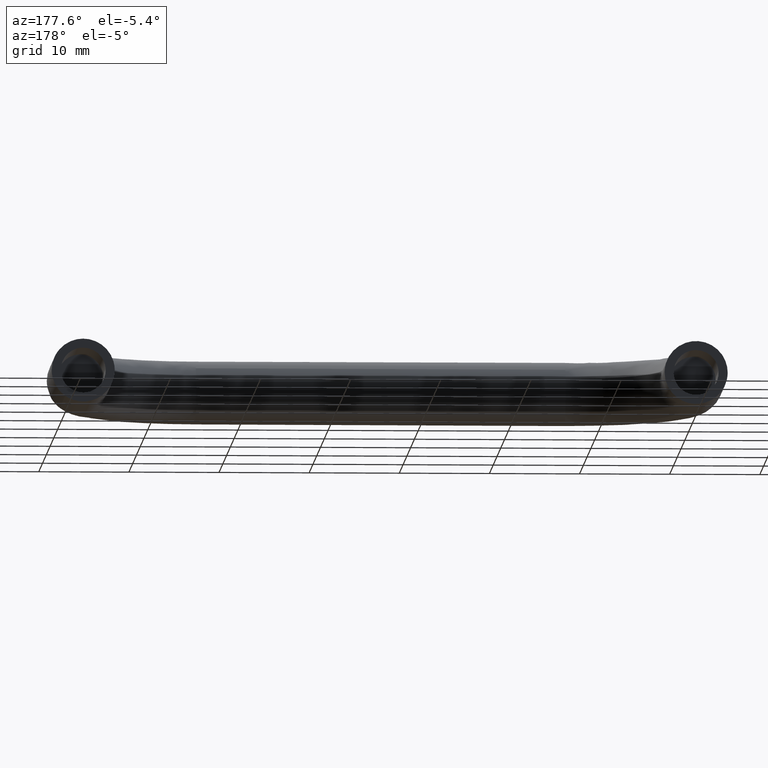
[diagram: clean part render]
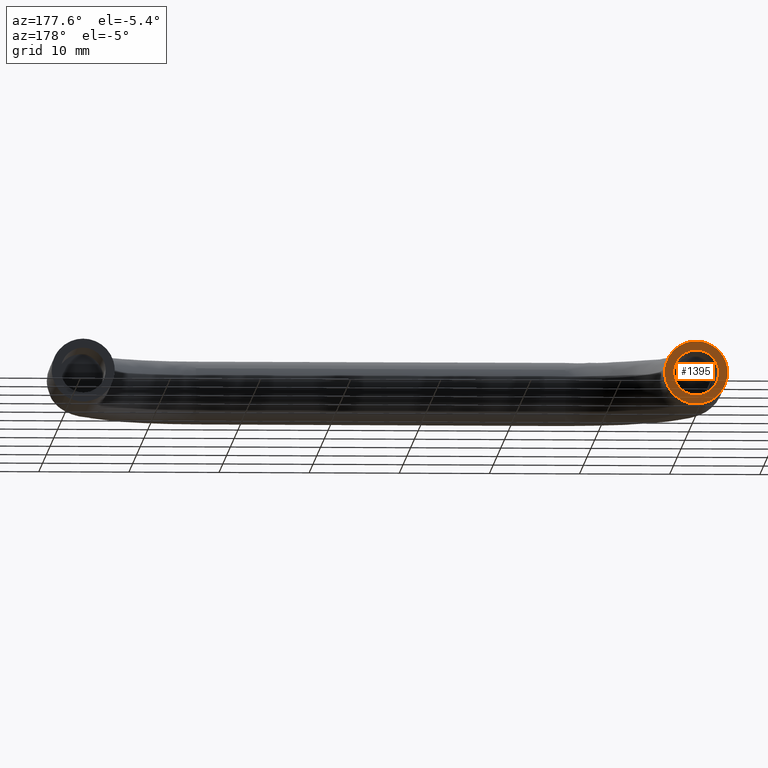
[diagram: same view with one face highlighted and labeled with its STEP entity id]
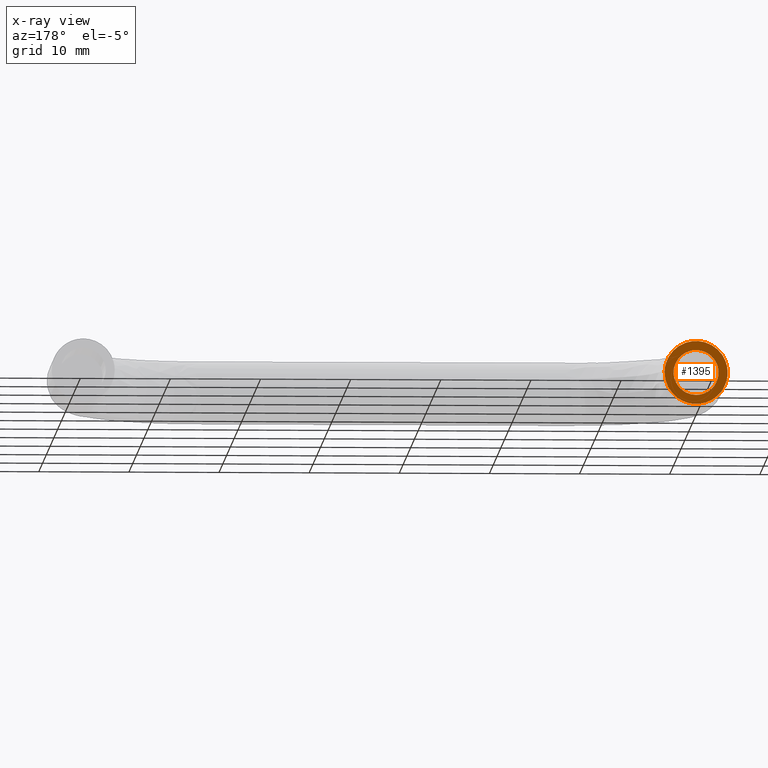
[diagram: x-ray of the same camera — body ghosted, the highlighted face saturated]
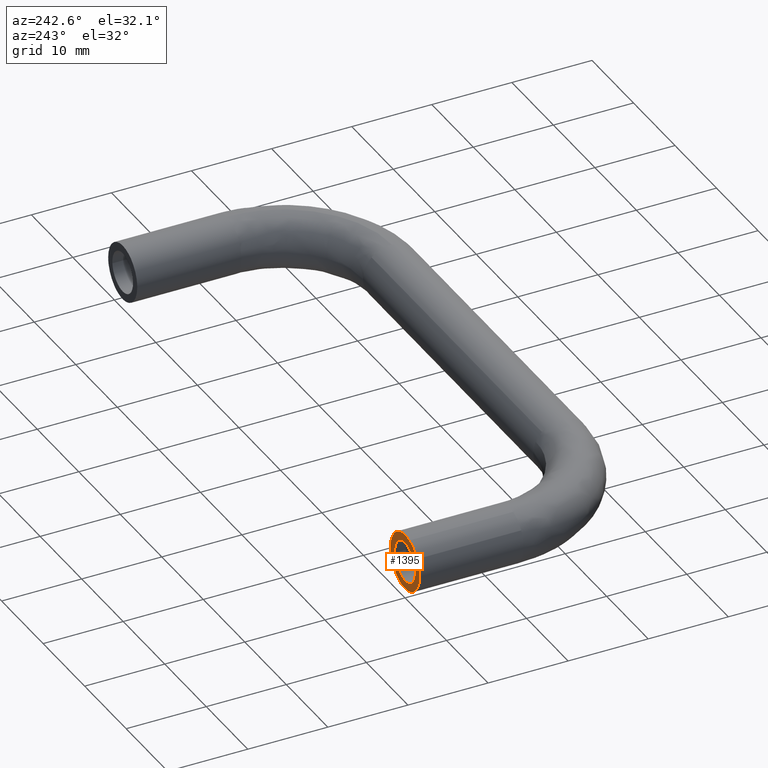
[diagram: same view with one face highlighted and labeled with its STEP entity id]
A machine part, auxiliary view. The second image highlights one B-rep face of the part: STEP entity #1395.
The next image is the same camera in x-ray: the body ghosted, the highlighted face saturated — about 0% of this face is hidden behind the body in this view.
A second angle (auxiliary view) of the same face is appended — the face is thin or edge-on in the first view.
In plain terms, the highlighted face is a freeform B-spline surface patch.
Its self-contained STEP definition (entity closure, byte-faithful):
#83=CARTESIAN_POINT('',(-2.492293673754679,-5.134781E-016,0.196143426460558));
#84=VERTEX_POINT('',#83);
#90=CARTESIAN_POINT('',(0.0,0.0,2.500000000000000));
#91=VERTEX_POINT('',#90);
#92=CARTESIAN_POINT('',(0.0,0.0,2.500000000000000));
#93=CARTESIAN_POINT('',(-2.310980240607946,0.0,2.500000000000001));
#94=CARTESIAN_POINT('',(-2.492293673754679,-5.134781E-016,0.196143426460558));
#102=(BOUNDED_CURVE()B_SPLINE_CURVE(2,(#92,#93,#94),.UNSPECIFIED.,.F.,.U.)B_SPLINE_CURVE_WITH_KNOTS((3,3),(0.0,0.236331597279149),.UNSPECIFIED.)CURVE()GEOMETRIC_REPRESENTATION_ITEM()RATIONAL_B_SPLINE_CURVE((1.0,0.723120311062342,0.969723975251009))REPRESENTATION_ITEM(''));
#103=EDGE_CURVE('',#91,#84,#102,.T.);
#105=CARTESIAN_POINT('',(2.492293673754679,-4.163336E-017,-0.196143426460558));
#106=VERTEX_POINT('',#105);
#107=CARTESIAN_POINT('',(2.492293673754678,-4.163336E-017,-0.196143426460558));
#108=CARTESIAN_POINT('',(2.500000000000000,0.0,-0.098223101082707));
#109=CARTESIAN_POINT('',(2.500000000000000,0.0,0.0));
#110=CARTESIAN_POINT('',(2.500000000000000,0.0,2.500000000000000));
#111=CARTESIAN_POINT('',(0.0,0.0,2.500000000000000));
#119=(BOUNDED_CURVE()B_SPLINE_CURVE(2,(#107,#108,#109,#110,#111),.UNSPECIFIED.,.F.,.U.)B_SPLINE_CURVE_WITH_KNOTS((3,2,3),(0.736331597279149,0.750000000000000,1.0),.UNSPECIFIED.)CURVE()GEOMETRIC_REPRESENTATION_ITEM()RATIONAL_B_SPLINE_CURVE((0.969723975251009,0.983986470124205,1.0,0.707106781186548,1.0))REPRESENTATION_ITEM(''));
#120=EDGE_CURVE('',#106,#91,#119,.T.);
#200=CARTESIAN_POINT('',(0.0,0.0,-2.500000000000000));
#201=VERTEX_POINT('',#200);
#202=CARTESIAN_POINT('',(0.0,0.0,-2.500000000000000));
#203=CARTESIAN_POINT('',(2.310980240607944,0.0,-2.500000000000001));
#204=CARTESIAN_POINT('',(2.492293673754678,-4.163336E-017,-0.196143426460558));
#212=(BOUNDED_CURVE()B_SPLINE_CURVE(2,(#202,#203,#204),.UNSPECIFIED.,.F.,.U.)B_SPLINE_CURVE_WITH_KNOTS((3,3),(0.500000000000000,0.736331597279149),.UNSPECIFIED.)CURVE()GEOMETRIC_REPRESENTATION_ITEM()RATIONAL_B_SPLINE_CURVE((1.0,0.723120311062342,0.969723975251009))REPRESENTATION_ITEM(''));
#213=EDGE_CURVE('',#201,#106,#212,.T.);
#215=CARTESIAN_POINT('',(-2.492293673754679,-5.134781E-016,0.196143426460558));
#216=CARTESIAN_POINT('',(-2.500000000000000,0.0,0.098223101082707));
#217=CARTESIAN_POINT('',(-2.500000000000000,0.0,0.0));
#218=CARTESIAN_POINT('',(-2.500000000000000,0.0,-2.500000000000000));
#219=CARTESIAN_POINT('',(0.0,0.0,-2.500000000000000));
#227=(BOUNDED_CURVE()B_SPLINE_CURVE(2,(#215,#216,#217,#218,#219),.UNSPECIFIED.,.F.,.U.)B_SPLINE_CURVE_WITH_KNOTS((3,2,3),(0.236331597279149,0.250000000000000,0.500000000000000),.UNSPECIFIED.)CURVE()GEOMETRIC_REPRESENTATION_ITEM()RATIONAL_B_SPLINE_CURVE((0.969723975251009,0.983986470124205,1.0,0.707106781186548,1.0))REPRESENTATION_ITEM(''));
#228=EDGE_CURVE('',#84,#201,#227,.T.);
#929=CARTESIAN_POINT('',(-2.895085452633777,4.865631E-016,1.966845246059861));
#930=VERTEX_POINT('',#929);
#936=CARTESIAN_POINT('',(-3.500000000000000,0.0,0.0));
#937=VERTEX_POINT('',#936);
#938=CARTESIAN_POINT('',(-3.500000000000000,0.0,0.0));
#939=CARTESIAN_POINT('',(-3.500000000000000,0.0,1.076445094004155));
#940=CARTESIAN_POINT('',(-2.895085452633778,4.865631E-016,1.966845246059860));
#948=(BOUNDED_CURVE()B_SPLINE_CURVE(2,(#938,#939,#940),.UNSPECIFIED.,.F.,.U.)B_SPLINE_CURVE_WITH_KNOTS((3,3),(0.500000000000000,0.596450219094872),.UNSPECIFIED.)CURVE()GEOMETRIC_REPRESENTATION_ITEM()RATIONAL_B_SPLINE_CURVE((1.0,0.887001539496160,0.861192889176150))REPRESENTATION_ITEM(''));
#949=EDGE_CURVE('',#937,#930,#948,.T.);
#951=CARTESIAN_POINT('',(3.500000000000000,0.0,0.0));
#952=VERTEX_POINT('',#951);
#953=CARTESIAN_POINT('',(3.500000000000000,0.0,0.0));
#954=CARTESIAN_POINT('',(3.500000000000000,0.0,-3.500000000000000));
#955=CARTESIAN_POINT('',(0.0,0.0,-3.500000000000000));
#956=CARTESIAN_POINT('',(-3.500000000000000,0.0,-3.500000000000000));
#957=CARTESIAN_POINT('',(-3.500000000000000,0.0,0.0));
#965=(BOUNDED_CURVE()B_SPLINE_CURVE(2,(#953,#954,#955,#956,#957),.UNSPECIFIED.,.F.,.U.)B_SPLINE_CURVE_WITH_KNOTS((3,2,3),(0.0,0.250000000000000,0.500000000000000),.UNSPECIFIED.)CURVE()GEOMETRIC_REPRESENTATION_ITEM()RATIONAL_B_SPLINE_CURVE((1.0,0.707106781186547,1.0,0.707106781186547,1.0))REPRESENTATION_ITEM(''));
#966=EDGE_CURVE('',#952,#937,#965,.T.);
#968=CARTESIAN_POINT('',(-0.994053706532481,-1.110223E-016,3.355869072018310));
#969=VERTEX_POINT('',#968);
#970=CARTESIAN_POINT('',(-0.994053706532481,-1.110223E-016,3.355869072018310));
#971=CARTESIAN_POINT('',(-0.507475848293936,0.0,3.500000000000000));
#972=CARTESIAN_POINT('',(0.0,0.0,3.500000000000000));
#973=CARTESIAN_POINT('',(3.500000000000000,0.0,3.500000000000000));
#974=CARTESIAN_POINT('',(3.500000000000000,0.0,0.0));
#982=(BOUNDED_CURVE()B_SPLINE_CURVE(2,(#970,#971,#972,#973,#974),.UNSPECIFIED.,.F.,.U.)B_SPLINE_CURVE_WITH_KNOTS((3,2,3),(0.701641517058892,0.750000000000000,1.0),.UNSPECIFIED.)CURVE()GEOMETRIC_REPRESENTATION_ITEM()RATIONAL_B_SPLINE_CURVE((0.908607213370599,0.943344513097774,1.0,0.707106781186547,1.0))REPRESENTATION_ITEM(''));
#983=EDGE_CURVE('',#969,#952,#982,.T.);
#1085=CARTESIAN_POINT('',(-2.895085452633777,4.865631E-016,1.966845246059861));
#1086=CARTESIAN_POINT('',(-2.192617683582060,0.0,3.000838247387388));
#1087=CARTESIAN_POINT('',(-0.994053706532481,-1.110223E-016,3.355869072018310));
#1095=(BOUNDED_CURVE()B_SPLINE_CURVE(2,(#1085,#1086,#1087),.UNSPECIFIED.,.F.,.U.)B_SPLINE_CURVE_WITH_KNOTS((3,3),(0.596450219094872,0.701641517058892),.UNSPECIFIED.)CURVE()GEOMETRIC_REPRESENTATION_ITEM()RATIONAL_B_SPLINE_CURVE((0.861192889176150,0.833045255595442,0.908607213370600))REPRESENTATION_ITEM(''));
#1096=EDGE_CURVE('',#930,#969,#1095,.T.);
#1378=CARTESIAN_POINT('',(-3.849649986432642,0.0,-3.849608421612707));
#1379=CARTESIAN_POINT('',(3.849650174187273,0.0,-3.849608421612707));
#1380=CARTESIAN_POINT('',(-3.849649986432642,0.0,3.848776480842558));
#1381=CARTESIAN_POINT('',(3.849650174187273,0.0,3.848776480842558));
#1382=B_SPLINE_SURFACE_WITH_KNOTS('',1,1,((#1378,#1380),(#1379,#1381)),.UNSPECIFIED.,.F.,.F.,.U.,(2,2),(2,2),(0.0,7.699300160619915),(0.0,7.698384902455266),.UNSPECIFIED.);
#1383=ORIENTED_EDGE('',*,*,#966,.T.);
#1384=ORIENTED_EDGE('',*,*,#949,.T.);
#1385=ORIENTED_EDGE('',*,*,#1096,.T.);
#1386=ORIENTED_EDGE('',*,*,#983,.T.);
#1387=EDGE_LOOP('',(#1383,#1384,#1385,#1386));
#1388=FACE_OUTER_BOUND('',#1387,.T.);
#1389=ORIENTED_EDGE('',*,*,#213,.T.);
#1390=ORIENTED_EDGE('',*,*,#120,.T.);
#1391=ORIENTED_EDGE('',*,*,#103,.T.);
#1392=ORIENTED_EDGE('',*,*,#228,.T.);
#1393=EDGE_LOOP('',(#1389,#1390,#1391,#1392));
#1394=FACE_BOUND('',#1393,.T.);
#1395=ADVANCED_FACE('',(#1388,#1394),#1382,.F.);